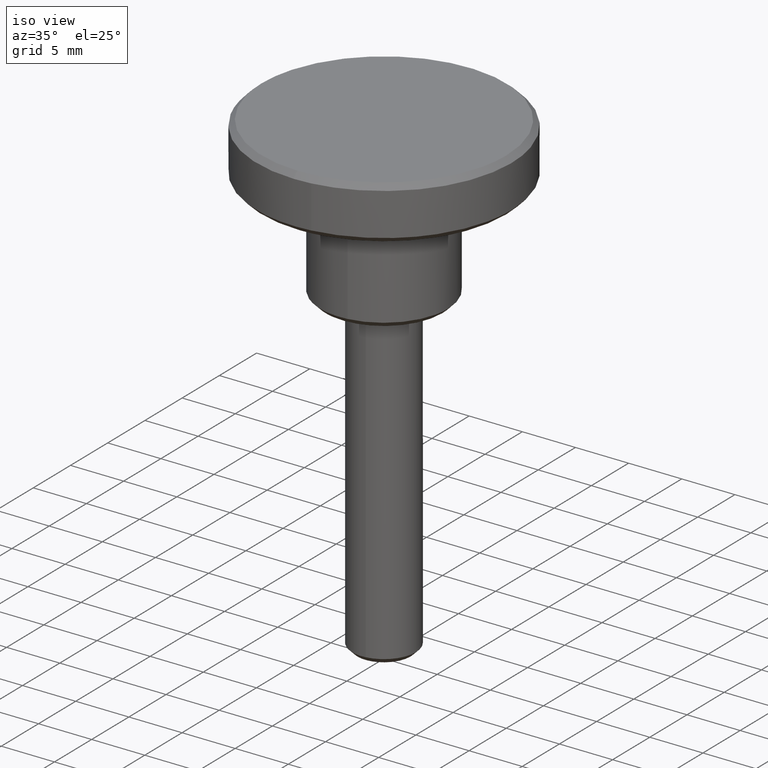
[diagram: clean part render]
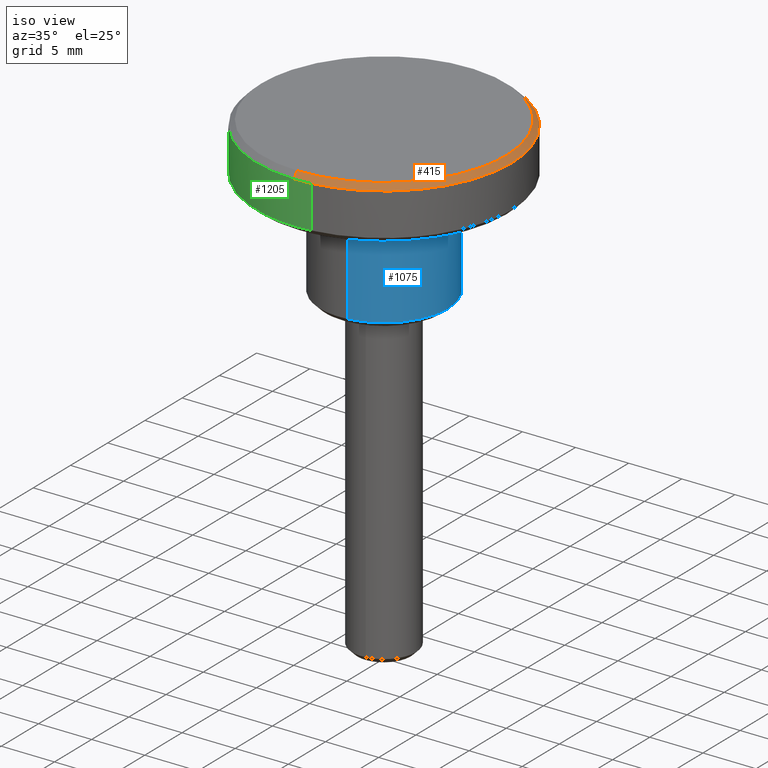
[diagram: same view with three faces highlighted in distinct colors, each labeled with its STEP entity id]
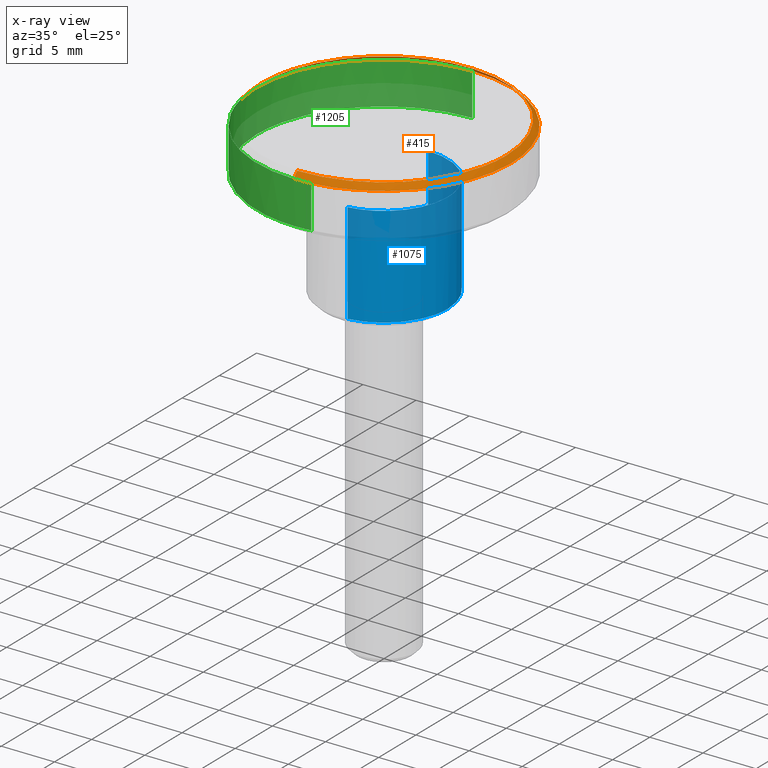
[diagram: x-ray of the same camera — body ghosted, the three highlighted faces saturated]
A machine part, iso view with three faces highlighted in distinct colors.
The next image is the same camera in x-ray (body ghosted, the three faces saturated) — at least one of them is partly hidden behind the body in this view.
Their STEP definitions:

[orange] entity #415 — the highlighted face is a freeform B-spline surface patch.
#245=CARTESIAN_POINT('',(-11.191331034639012,-2.591672418174083,15.012500000000003));
#246=CARTESIAN_POINT('',(-11.498961770299591,-1.263264794176366,15.012500000000003));
#247=CARTESIAN_POINT('',(-11.487062591199610,0.100246076537570,15.012499999999999));
#248=CARTESIAN_POINT('',(-11.386816514662039,11.587308667737178,15.012500000000008));
#249=CARTESIAN_POINT('',(0.100246076537570,11.487062591199610,15.012499999999999));
#250=CARTESIAN_POINT('',(11.587308667737178,11.386816514662039,15.012500000000008));
#251=CARTESIAN_POINT('',(11.487062591199610,-0.100246076537570,15.012499999999999));
#252=CARTESIAN_POINT('',(11.386816514662039,-11.587308667737178,15.012500000000008));
#253=CARTESIAN_POINT('',(-0.100246076537570,-11.487062591199610,15.012499999999999));
#254=CARTESIAN_POINT('',(-11.703100008230697,-2.710187144369708,14.487187499999997));
#255=CARTESIAN_POINT('',(-12.024798406204811,-1.321032697305058,14.487187500000001));
#256=CARTESIAN_POINT('',(-12.012355088909320,0.104830234716560,14.487187499999999));
#257=CARTESIAN_POINT('',(-11.907524854192760,12.117185323625877,14.487187500000005));
#258=CARTESIAN_POINT('',(0.104830234716560,12.012355088909320,14.487187499999999));
#259=CARTESIAN_POINT('',(12.117185323625877,11.907524854192760,14.487187500000005));
#260=CARTESIAN_POINT('',(12.012355088909320,-0.104830234716560,14.487187499999999));
#261=CARTESIAN_POINT('',(11.907524854192760,-12.117185323625877,14.487187500000005));
#262=CARTESIAN_POINT('',(-0.104830234716560,-12.012355088909320,14.487187499999999));
#270=(BOUNDED_SURFACE()B_SPLINE_SURFACE(2,1,((#245,#254),(#246,#255),(#247,#256),(#248,#257),(#249,#258),(#250,#259),(#251,#260),(#252,#261),(#253,#262)),.UNSPECIFIED.,.F.,.F.,.U.)B_SPLINE_SURFACE_WITH_KNOTS((3,2,2,2,3),(2,2),(0.0,3.184556710236832,23.088036149217022,42.991515588197210,62.894995027177401),(0.0,1.0),.UNSPECIFIED.)GEOMETRIC_REPRESENTATION_ITEM()RATIONAL_B_SPLINE_SURFACE(((0.921270302782944,0.921270302782944),(0.953137084989848,0.953137084989848),(1.0,1.0),(0.707106781186548,0.707106781186548),(1.0,1.0),(0.707106781186548,0.707106781186548),(1.0,1.0),(0.707106781186548,0.707106781186548),(1.0,1.0)))REPRESENTATION_ITEM('')SURFACE());
#271=CARTESIAN_POINT('',(-11.690617838142330,-2.707296541298529,14.499999999999231));
#272=VERTEX_POINT('',#271);
#273=CARTESIAN_POINT('',(-12.0,0.0,14.500000000000000));
#274=VERTEX_POINT('',#273);
#275=CARTESIAN_POINT('',(-11.690617838142327,-2.707296541298529,14.499999999999227));
#276=CARTESIAN_POINT('',(-12.000000000000004,-1.371325928163717,14.500000000000004));
#277=CARTESIAN_POINT('',(-12.0,0.0,14.500000000000000));
#285=(BOUNDED_CURVE()B_SPLINE_CURVE(2,(#275,#276,#277),.UNSPECIFIED.,.F.,.U.)B_SPLINE_CURVE_WITH_KNOTS((3,3),(0.961422971784425,1.0),.UNSPECIFIED.)CURVE()GEOMETRIC_REPRESENTATION_ITEM()RATIONAL_B_SPLINE_CURVE((0.923556557442486,0.954804200134731,1.0))REPRESENTATION_ITEM(''));
#286=EDGE_CURVE('',#272,#274,#285,.T.);
#287=ORIENTED_EDGE('',*,*,#286,.F.);
#288=CARTESIAN_POINT('',(-11.203508761551699,-2.594492518756421,14.999999999997851));
#289=VERTEX_POINT('',#288);
#290=CARTESIAN_POINT('',(-11.203508761551699,-2.594492518756421,14.999999999997851));
#291=CARTESIAN_POINT('',(-11.690617838142330,-2.707296541298529,14.499999999999231));
#292=QUASI_UNIFORM_CURVE('',1,(#290,#291),.UNSPECIFIED.,.F.,.U.);
#293=EDGE_CURVE('',#289,#272,#292,.T.);
#294=ORIENTED_EDGE('',*,*,#293,.F.);
#295=CARTESIAN_POINT('',(-11.500000000000000,0.0,15.0));
#296=VERTEX_POINT('',#295);
#297=CARTESIAN_POINT('',(-11.500000000000000,0.0,15.0));
#298=CARTESIAN_POINT('',(-11.500000000000002,-1.314187347835726,14.999999999999998));
#299=CARTESIAN_POINT('',(-11.203508761551705,-2.594492518756421,14.999999999997852));
#307=(BOUNDED_CURVE()B_SPLINE_CURVE(2,(#297,#298,#299),.UNSPECIFIED.,.F.,.U.)B_SPLINE_CURVE_WITH_KNOTS((3,3),(0.500000000000000,0.538577028215916),.UNSPECIFIED.)CURVE()GEOMETRIC_REPRESENTATION_ITEM()RATIONAL_B_SPLINE_CURVE((1.0,0.954804200134332,0.923556557441934))REPRESENTATION_ITEM(''));
#308=EDGE_CURVE('',#296,#289,#307,.T.);
#309=ORIENTED_EDGE('',*,*,#308,.F.);
#310=CARTESIAN_POINT('',(11.500000000000000,0.0,15.0));
#311=VERTEX_POINT('',#310);
#312=CARTESIAN_POINT('',(11.500000000000000,0.0,15.0));
#313=CARTESIAN_POINT('',(11.500000000000000,11.500000000000000,14.999999999999995));
#314=CARTESIAN_POINT('',(0.0,11.500000000000000,15.0));
#315=CARTESIAN_POINT('',(-11.500000000000000,11.500000000000000,14.999999999999995));
#316=CARTESIAN_POINT('',(-11.500000000000000,0.0,15.0));
#324=(BOUNDED_CURVE()B_SPLINE_CURVE(2,(#312,#313,#314,#315,#316),.UNSPECIFIED.,.F.,.U.)B_SPLINE_CURVE_WITH_KNOTS((3,2,3),(0.0,0.250000000000000,0.500000000000000),.UNSPECIFIED.)CURVE()GEOMETRIC_REPRESENTATION_ITEM()RATIONAL_B_SPLINE_CURVE((1.0,0.707106781186548,1.0,0.707106781186548,1.0))REPRESENTATION_ITEM(''));
#325=EDGE_CURVE('',#311,#296,#324,.T.);
#326=ORIENTED_EDGE('',*,*,#325,.F.);
#327=CARTESIAN_POINT('',(-0.100355158268865,-11.499562115242730,14.999999999994881));
#328=VERTEX_POINT('',#327);
#329=CARTESIAN_POINT('',(-0.100355158268865,-11.499562115242728,14.999999999994886));
#330=CARTESIAN_POINT('',(-0.050178534475591,-11.499999999999996,14.999999999999998));
#331=CARTESIAN_POINT('',(0.0,-11.500000000000000,15.0));
#332=CARTESIAN_POINT('',(11.500000000000000,-11.500000000000000,14.999999999999995));
#333=CARTESIAN_POINT('',(11.500000000000000,0.0,15.0));
#341=(BOUNDED_CURVE()B_SPLINE_CURVE(2,(#329,#330,#331,#332,#333),.UNSPECIFIED.,.F.,.U.)B_SPLINE_CURVE_WITH_KNOTS((3,2,3),(0.748460105663863,0.750000000000000,1.0),.UNSPECIFIED.)CURVE()GEOMETRIC_REPRESENTATION_ITEM()RATIONAL_B_SPLINE_CURVE((0.996414028097746,0.998195901565025,1.0,0.707106781186548,1.0))REPRESENTATION_ITEM(''));
#342=EDGE_CURVE('',#328,#311,#341,.T.);
#343=ORIENTED_EDGE('',*,*,#342,.F.);
#344=CARTESIAN_POINT('',(-0.104718426003151,-11.999543076772930,14.499999999996930));
#345=VERTEX_POINT('',#344);
#346=CARTESIAN_POINT('',(-0.100355158268865,-11.499562115242730,14.999999999994881));
#347=CARTESIAN_POINT('',(-0.104718426003151,-11.999543076772930,14.499999999996930));
#348=QUASI_UNIFORM_CURVE('',1,(#346,#347),.UNSPECIFIED.,.F.,.U.);
#349=EDGE_CURVE('',#328,#345,#348,.T.);
#350=ORIENTED_EDGE('',*,*,#349,.T.);
#351=CARTESIAN_POINT('',(1.489535021150606,-11.907194691478130,14.499999999999970));
#352=VERTEX_POINT('',#351);
#353=CARTESIAN_POINT('',(1.489535021150606,-11.907194691478125,14.499999999999973));
#354=CARTESIAN_POINT('',(0.747658622622870,-12.0,14.499999999999998));
#355=CARTESIAN_POINT('',(0.0,-12.0,14.500000000000000));
#356=CARTESIAN_POINT('',(-0.052360209871069,-12.000000000000004,14.500000000000000));
#357=CARTESIAN_POINT('',(-0.104718426003151,-11.999543076772932,14.499999999996927));
#365=(BOUNDED_CURVE()B_SPLINE_CURVE(2,(#353,#354,#355,#356,#357),.UNSPECIFIED.,.F.,.U.)B_SPLINE_CURVE_WITH_KNOTS((3,2,3),(0.728526085246587,0.750000000000000,0.751539894335652),.UNSPECIFIED.)CURVE()GEOMETRIC_REPRESENTATION_ITEM()RATIONAL_B_SPLINE_CURVE((0.954005457864981,0.974841743949389,1.0,0.998195901565593,0.996414028098867))REPRESENTATION_ITEM(''));
#366=EDGE_CURVE('',#352,#345,#365,.T.);
#367=ORIENTED_EDGE('',*,*,#366,.F.);
#368=CARTESIAN_POINT('',(12.0,0.0,14.500000000000000));
#369=VERTEX_POINT('',#368);
#370=CARTESIAN_POINT('',(12.0,0.0,14.500000000000000));
#371=CARTESIAN_POINT('',(12.000000000000002,-10.592384101727941,14.500000000000004));
#372=CARTESIAN_POINT('',(1.489535021150606,-11.907194691478125,14.499999999999973));
#380=(BOUNDED_CURVE()B_SPLINE_CURVE(2,(#370,#371,#372),.UNSPECIFIED.,.F.,.U.)B_SPLINE_CURVE_WITH_KNOTS((3,3),(0.500000000000000,0.728526085246587),.UNSPECIFIED.)CURVE()GEOMETRIC_REPRESENTATION_ITEM()RATIONAL_B_SPLINE_CURVE((1.0,0.732265037237158,0.954005457864981))REPRESENTATION_ITEM(''));
#381=EDGE_CURVE('',#369,#352,#380,.T.);
#382=ORIENTED_EDGE('',*,*,#381,.F.);
#383=CARTESIAN_POINT('',(-0.104706666921923,11.999543179378280,14.499999999999890));
#384=VERTEX_POINT('',#383);
#385=CARTESIAN_POINT('',(-0.104706666921923,11.999543179378277,14.499999999999895));
#386=CARTESIAN_POINT('',(-0.052354329983374,11.999999999999996,14.500000000000002));
#387=CARTESIAN_POINT('',(0.0,12.0,14.500000000000000));
#388=CARTESIAN_POINT('',(12.0,12.0,14.500000000000000));
#389=CARTESIAN_POINT('',(12.0,0.0,14.500000000000000));
#397=(BOUNDED_CURVE()B_SPLINE_CURVE(2,(#385,#386,#387,#388,#389),.UNSPECIFIED.,.F.,.U.)B_SPLINE_CURVE_WITH_KNOTS((3,2,3),(0.248460278277723,0.250000000000000,0.500000000000000),.UNSPECIFIED.)CURVE()GEOMETRIC_REPRESENTATION_ITEM()RATIONAL_B_SPLINE_CURVE((0.996414427574858,0.998196103794741,1.0,0.707106781186548,1.0))REPRESENTATION_ITEM(''));
#398=EDGE_CURVE('',#384,#369,#397,.T.);
#399=ORIENTED_EDGE('',*,*,#398,.F.);
#400=CARTESIAN_POINT('',(-12.0,0.0,14.500000000000000));
#401=CARTESIAN_POINT('',(-12.000000000000002,11.895746184919648,14.499999999999998));
#402=CARTESIAN_POINT('',(-0.104706666921923,11.999543179378277,14.499999999999895));
#410=(BOUNDED_CURVE()B_SPLINE_CURVE(2,(#400,#401,#402),.UNSPECIFIED.,.F.,.U.)B_SPLINE_CURVE_WITH_KNOTS((3,3),(0.0,0.248460278277723),.UNSPECIFIED.)CURVE()GEOMETRIC_REPRESENTATION_ITEM()RATIONAL_B_SPLINE_CURVE((1.0,0.708910677391806,0.996414427574858))REPRESENTATION_ITEM(''));
#411=EDGE_CURVE('',#274,#384,#410,.T.);
#412=ORIENTED_EDGE('',*,*,#411,.F.);
#413=EDGE_LOOP('',(#287,#294,#309,#326,#343,#350,#367,#382,#399,#412));
#414=FACE_OUTER_BOUND('',#413,.T.);
#415=ADVANCED_FACE('',(#414),#270,.T.);

[blue] entity #1075 — the highlighted face is a freeform B-spline surface patch.
#701=CARTESIAN_POINT('',(0.744768012509820,-5.953597282949374,0.499999999999945));
#702=VERTEX_POINT('',#701);
#759=CARTESIAN_POINT('',(-0.052356379839842,5.999771563105536,0.499999999998589));
#760=VERTEX_POINT('',#759);
#766=CARTESIAN_POINT('',(6.0,0.0,0.499999999999945));
#767=VERTEX_POINT('',#766);
#768=CARTESIAN_POINT('',(6.0,0.0,0.499999999999945));
#769=CARTESIAN_POINT('',(6.0,6.0,0.499999999999945));
#770=CARTESIAN_POINT('',(0.0,6.0,0.499999999999945));
#771=CARTESIAN_POINT('',(-0.026178688268117,5.999999999999999,0.499999999999945));
#772=CARTESIAN_POINT('',(-0.052356379839842,5.999771563105536,0.499999999998589));
#780=(BOUNDED_CURVE()B_SPLINE_CURVE(2,(#768,#769,#770,#771,#772),.UNSPECIFIED.,.F.,.U.)B_SPLINE_CURVE_WITH_KNOTS((3,2,3),(0.500000000000000,0.750000000000000,0.751539811158649),.UNSPECIFIED.)CURVE()GEOMETRIC_REPRESENTATION_ITEM()RATIONAL_B_SPLINE_CURVE((1.0,0.707106781186548,1.0,0.998195999013514,0.996414220593821))REPRESENTATION_ITEM(''));
#781=EDGE_CURVE('',#767,#760,#780,.T.);
#783=CARTESIAN_POINT('',(0.744768012509820,-5.953597282949374,0.499999999999945));
#784=CARTESIAN_POINT('',(6.000000000000001,-5.296191600846071,0.499999999999945));
#785=CARTESIAN_POINT('',(6.0,0.0,0.499999999999945));
#793=(BOUNDED_CURVE()B_SPLINE_CURVE(2,(#783,#784,#785),.UNSPECIFIED.,.F.,.U.)B_SPLINE_CURVE_WITH_KNOTS((3,3),(0.271473928972449,0.500000000000000),.UNSPECIFIED.)CURVE()GEOMETRIC_REPRESENTATION_ITEM()RATIONAL_B_SPLINE_CURVE((0.954005430271328,0.732265053895795,1.0))REPRESENTATION_ITEM(''));
#794=EDGE_CURVE('',#702,#767,#793,.T.);
#1005=CARTESIAN_POINT('',(0.660702262664978,-5.964113526903052,0.262499999999943));
#1006=CARTESIAN_POINT('',(0.702631630389965,-5.958868353207065,0.262499999999943));
#1007=CARTESIAN_POINT('',(6.046396983014668,-5.290387548799326,0.262499999999943));
#1008=CARTESIAN_POINT('',(5.999771538385026,0.052359212990243,0.262499999999943));
#1009=CARTESIAN_POINT('',(5.947412325394783,6.052130751375269,0.262499999999943));
#1010=CARTESIAN_POINT('',(-0.092971424276106,5.999417120986445,0.262499999999943));
#1011=CARTESIAN_POINT('',(-0.133356535683414,5.999064685458480,0.262499999999943));
#1012=CARTESIAN_POINT('',(0.660702262664978,-5.964113526903052,10.243437500000006));
#1013=CARTESIAN_POINT('',(0.702631630389965,-5.958868353207065,10.243437500000004));
#1014=CARTESIAN_POINT('',(6.046396983014668,-5.290387548799326,10.243437500000004));
#1015=CARTESIAN_POINT('',(5.999771538385026,0.052359212990243,10.243437500000001));
#1016=CARTESIAN_POINT('',(5.947412325394783,6.052130751375269,10.243437500000004));
#1017=CARTESIAN_POINT('',(-0.092971424276106,5.999417120986445,10.243437500000002));
#1018=CARTESIAN_POINT('',(-0.133356535683414,5.999064685458480,10.243437500000008));
#1026=(BOUNDED_SURFACE()B_SPLINE_SURFACE(2,1,((#1005,#1012),(#1006,#1013),(#1007,#1014),(#1008,#1015),(#1009,#1016),(#1010,#1017),(#1011,#1018)),.UNSPECIFIED.,.F.,.F.,.U.)B_SPLINE_SURFACE_WITH_KNOTS((3,1,2,1,3),(2,2),(0.0,0.095446361914486,9.241281819112421,19.182407316066701,19.277838840330649),(0.0,9.980937500000062),.UNSPECIFIED.)GEOMETRIC_REPRESENTATION_ITEM()RATIONAL_B_SPLINE_SURFACE(((0.961610472073112,0.961610472073112),(0.959248295131886,0.959248295131886),(0.730538238691624,0.730538238691624),(1.0,1.0),(0.707106781186548,0.707106781186548),(1.002811678247750,1.002811678247750),(1.005623356495500,1.005623356495500)))REPRESENTATION_ITEM('')SURFACE());
#1027=ORIENTED_EDGE('',*,*,#794,.T.);
#1028=ORIENTED_EDGE('',*,*,#781,.T.);
#1029=CARTESIAN_POINT('',(-0.052354715999925,5.999771577626296,10.0));
#1030=VERTEX_POINT('',#1029);
#1031=CARTESIAN_POINT('',(-0.052356379839842,5.999771563105536,0.499999999998589));
#1032=CARTESIAN_POINT('',(-0.052354715999925,5.999771577626296,10.0));
#1033=QUASI_UNIFORM_CURVE('',1,(#1031,#1032),.UNSPECIFIED.,.F.,.U.);
#1034=EDGE_CURVE('',#760,#1030,#1033,.T.);
#1035=ORIENTED_EDGE('',*,*,#1034,.T.);
#1036=CARTESIAN_POINT('',(6.0,0.0,10.0));
#1037=VERTEX_POINT('',#1036);
#1038=CARTESIAN_POINT('',(-0.052354715999925,5.999771577626296,10.0));
#1039=CARTESIAN_POINT('',(-0.026177856300639,6.0,10.000000000000002));
#1040=CARTESIAN_POINT('',(0.0,6.0,10.0));
#1041=CARTESIAN_POINT('',(6.0,6.0,10.000000000000002));
#1042=CARTESIAN_POINT('',(6.0,0.0,10.0));
#1050=(BOUNDED_CURVE()B_SPLINE_CURVE(2,(#1038,#1039,#1040,#1041,#1042),.UNSPECIFIED.,.F.,.U.)B_SPLINE_CURVE_WITH_KNOTS((3,2,3),(0.248460237688788,0.250000000000000,0.500000000000000),.UNSPECIFIED.)CURVE()GEOMETRIC_REPRESENTATION_ITEM()RATIONAL_B_SPLINE_CURVE((0.996414333640575,0.998196056241846,1.0,0.707106781186548,1.0))REPRESENTATION_ITEM(''));
#1051=EDGE_CURVE('',#1030,#1037,#1050,.T.);
#1052=ORIENTED_EDGE('',*,*,#1051,.T.);
#1053=CARTESIAN_POINT('',(0.744757817497548,-5.953598558281430,10.0));
#1054=VERTEX_POINT('',#1053);
#1055=CARTESIAN_POINT('',(6.0,0.0,10.0));
#1056=CARTESIAN_POINT('',(6.000000000000002,-5.296200740827882,10.0));
#1057=CARTESIAN_POINT('',(0.744757817497548,-5.953598558281430,10.0));
#1065=(BOUNDED_CURVE()B_SPLINE_CURVE(2,(#1055,#1056,#1057),.UNSPECIFIED.,.F.,.U.)B_SPLINE_CURVE_WITH_KNOTS((3,3),(0.500000000000000,0.728526359819781),.UNSPECIFIED.)CURVE()GEOMETRIC_REPRESENTATION_ITEM()RATIONAL_B_SPLINE_CURVE((1.0,0.732264715554652,0.954005990706177))REPRESENTATION_ITEM(''));
#1066=EDGE_CURVE('',#1037,#1054,#1065,.T.);
#1067=ORIENTED_EDGE('',*,*,#1066,.T.);
#1068=CARTESIAN_POINT('',(0.744768012509820,-5.953597282949374,0.499999999999945));
#1069=CARTESIAN_POINT('',(0.744757817497548,-5.953598558281430,10.0));
#1070=QUASI_UNIFORM_CURVE('',1,(#1068,#1069),.UNSPECIFIED.,.F.,.U.);
#1071=EDGE_CURVE('',#702,#1054,#1070,.T.);
#1072=ORIENTED_EDGE('',*,*,#1071,.F.);
#1073=EDGE_LOOP('',(#1027,#1028,#1035,#1052,#1067,#1072));
#1074=FACE_OUTER_BOUND('',#1073,.T.);
#1075=ADVANCED_FACE('',(#1074),#1026,.T.);

[green] entity #1205 — the highlighted face is a freeform B-spline surface patch.
#271=CARTESIAN_POINT('',(-11.690617838142330,-2.707296541298529,14.499999999999231));
#272=VERTEX_POINT('',#271);
#273=CARTESIAN_POINT('',(-12.0,0.0,14.500000000000000));
#274=VERTEX_POINT('',#273);
#275=CARTESIAN_POINT('',(-11.690617838142327,-2.707296541298529,14.499999999999227));
#276=CARTESIAN_POINT('',(-12.000000000000004,-1.371325928163717,14.500000000000004));
#277=CARTESIAN_POINT('',(-12.0,0.0,14.500000000000000));
#285=(BOUNDED_CURVE()B_SPLINE_CURVE(2,(#275,#276,#277),.UNSPECIFIED.,.F.,.U.)B_SPLINE_CURVE_WITH_KNOTS((3,3),(0.961422971784425,1.0),.UNSPECIFIED.)CURVE()GEOMETRIC_REPRESENTATION_ITEM()RATIONAL_B_SPLINE_CURVE((0.923556557442486,0.954804200134731,1.0))REPRESENTATION_ITEM(''));
#286=EDGE_CURVE('',#272,#274,#285,.T.);
#344=CARTESIAN_POINT('',(-0.104718426003151,-11.999543076772930,14.499999999996930));
#345=VERTEX_POINT('',#344);
#351=CARTESIAN_POINT('',(1.489535021150606,-11.907194691478130,14.499999999999970));
#352=VERTEX_POINT('',#351);
#353=CARTESIAN_POINT('',(1.489535021150606,-11.907194691478125,14.499999999999973));
#354=CARTESIAN_POINT('',(0.747658622622870,-12.0,14.499999999999998));
#355=CARTESIAN_POINT('',(0.0,-12.0,14.500000000000000));
#356=CARTESIAN_POINT('',(-0.052360209871069,-12.000000000000004,14.500000000000000));
#357=CARTESIAN_POINT('',(-0.104718426003151,-11.999543076772932,14.499999999996927));
#365=(BOUNDED_CURVE()B_SPLINE_CURVE(2,(#353,#354,#355,#356,#357),.UNSPECIFIED.,.F.,.U.)B_SPLINE_CURVE_WITH_KNOTS((3,2,3),(0.728526085246587,0.750000000000000,0.751539894335652),.UNSPECIFIED.)CURVE()GEOMETRIC_REPRESENTATION_ITEM()RATIONAL_B_SPLINE_CURVE((0.954005457864981,0.974841743949389,1.0,0.998195901565593,0.996414028098867))REPRESENTATION_ITEM(''));
#366=EDGE_CURVE('',#352,#345,#365,.T.);
#383=CARTESIAN_POINT('',(-0.104706666921923,11.999543179378280,14.499999999999890));
#384=VERTEX_POINT('',#383);
#400=CARTESIAN_POINT('',(-12.0,0.0,14.500000000000000));
#401=CARTESIAN_POINT('',(-12.000000000000002,11.895746184919648,14.499999999999998));
#402=CARTESIAN_POINT('',(-0.104706666921923,11.999543179378277,14.499999999999895));
#410=(BOUNDED_CURVE()B_SPLINE_CURVE(2,(#400,#401,#402),.UNSPECIFIED.,.F.,.U.)B_SPLINE_CURVE_WITH_KNOTS((3,3),(0.0,0.248460278277723),.UNSPECIFIED.)CURVE()GEOMETRIC_REPRESENTATION_ITEM()RATIONAL_B_SPLINE_CURVE((1.0,0.708910677391806,0.996414427574858))REPRESENTATION_ITEM(''));
#411=EDGE_CURVE('',#274,#384,#410,.T.);
#430=CARTESIAN_POINT('',(-0.104718426003151,-11.999543076772934,14.499999999996927));
#431=CARTESIAN_POINT('',(-9.557837021806503,-11.917046960538249,14.499999999999998));
#432=CARTESIAN_POINT('',(-11.690617838142328,-2.707296541298530,14.499999999999229));
#440=(BOUNDED_CURVE()B_SPLINE_CURVE(2,(#430,#431,#432),.UNSPECIFIED.,.F.,.U.)B_SPLINE_CURVE_WITH_KNOTS((3,3),(0.751539894335652,0.961422971784425),.UNSPECIFIED.)CURVE()GEOMETRIC_REPRESENTATION_ITEM()RATIONAL_B_SPLINE_CURVE((0.996414028098868,0.753549905436560,0.923556557442487))REPRESENTATION_ITEM(''));
#441=EDGE_CURVE('',#345,#272,#440,.T.);
#538=CARTESIAN_POINT('',(0.104718425981447,-11.999543076770159,10.500000000000149));
#539=VERTEX_POINT('',#538);
#545=CARTESIAN_POINT('',(-12.0,0.0,10.500000000000000));
#546=VERTEX_POINT('',#545);
#547=CARTESIAN_POINT('',(-12.0,0.0,10.500000000000000));
#548=CARTESIAN_POINT('',(-12.0,-12.0,10.500000000000002));
#549=CARTESIAN_POINT('',(0.0,-12.0,10.500000000000000));
#550=CARTESIAN_POINT('',(0.052360209849382,-12.000000000000002,10.500000000000002));
#551=CARTESIAN_POINT('',(0.104718425981447,-11.999543076770161,10.500000000000146));
#559=(BOUNDED_CURVE()B_SPLINE_CURVE(2,(#547,#548,#549,#550,#551),.UNSPECIFIED.,.F.,.U.)B_SPLINE_CURVE_WITH_KNOTS((3,2,3),(0.0,0.250000000000000,0.251539894335015),.UNSPECIFIED.)CURVE()GEOMETRIC_REPRESENTATION_ITEM()RATIONAL_B_SPLINE_CURVE((1.0,0.707106781186548,1.0,0.998195901566339,0.996414028100340))REPRESENTATION_ITEM(''));
#560=EDGE_CURVE('',#546,#539,#559,.T.);
#562=CARTESIAN_POINT('',(-0.104707031182674,11.999543176200129,10.500000000000000));
#563=VERTEX_POINT('',#562);
#564=CARTESIAN_POINT('',(-0.104707031182674,11.999543176200127,10.500000000000002));
#565=CARTESIAN_POINT('',(-12.000000000000002,11.895745823796045,10.500000000000000));
#566=CARTESIAN_POINT('',(-12.0,0.0,10.500000000000000));
#574=(BOUNDED_CURVE()B_SPLINE_CURVE(2,(#564,#565,#566),.UNSPECIFIED.,.F.,.U.)B_SPLINE_CURVE_WITH_KNOTS((3,3),(0.751539727069308,1.0),.UNSPECIFIED.)CURVE()GEOMETRIC_REPRESENTATION_ITEM()RATIONAL_B_SPLINE_CURVE((0.996414415200314,0.708910683656242,1.0))REPRESENTATION_ITEM(''));
#575=EDGE_CURVE('',#563,#546,#574,.T.);
#645=CARTESIAN_POINT('',(1.489523305221158,-11.907196157074040,10.500000000000000));
#646=VERTEX_POINT('',#645);
#660=CARTESIAN_POINT('',(0.104718425981447,-11.999543076770159,10.500000000000144));
#661=CARTESIAN_POINT('',(0.799795476801113,-11.993477231243038,10.499999999999996));
#662=CARTESIAN_POINT('',(1.489523305221158,-11.907196157074040,10.500000000000000));
#670=(BOUNDED_CURVE()B_SPLINE_CURVE(2,(#660,#661,#662),.UNSPECIFIED.,.F.,.U.)B_SPLINE_CURVE_WITH_KNOTS((3,3),(0.251539894335015,0.271473748816434),.UNSPECIFIED.)CURVE()GEOMETRIC_REPRESENTATION_ITEM()RATIONAL_B_SPLINE_CURVE((0.996414028100341,0.973347765975828,0.954005779884806))REPRESENTATION_ITEM(''));
#671=EDGE_CURVE('',#539,#646,#670,.T.);
#1155=CARTESIAN_POINT('',(1.489523305221158,-11.907196157074040,10.500000000000000));
#1156=CARTESIAN_POINT('',(1.489535021150606,-11.907194691478130,14.499999999999970));
#1157=QUASI_UNIFORM_CURVE('',1,(#1155,#1156),.UNSPECIFIED.,.F.,.U.);
#1158=EDGE_CURVE('',#646,#352,#1157,.T.);
#1163=CARTESIAN_POINT('',(-0.104707031182674,11.999543176200129,10.500000000000000));
#1164=CARTESIAN_POINT('',(-0.104706666921923,11.999543179378280,14.499999999999890));
#1165=QUASI_UNIFORM_CURVE('',1,(#1163,#1164),.UNSPECIFIED.,.F.,.U.);
#1166=EDGE_CURVE('',#563,#384,#1165,.T.);
#1172=CARTESIAN_POINT('',(-0.104718425980487,11.999543076770051,10.400000000000000));
#1173=CARTESIAN_POINT('',(-12.104261502750537,11.894824650789566,10.399999999999999));
#1174=CARTESIAN_POINT('',(-11.999543076770051,-0.104718425980487,10.400000000000000));
#1175=CARTESIAN_POINT('',(-11.894824650789566,-12.104261502750537,10.399999999999999));
#1176=CARTESIAN_POINT('',(0.104718425980487,-11.999543076770051,10.400000000000000));
#1177=CARTESIAN_POINT('',(0.799801907498083,-11.993477175123314,10.400000000000002));
#1178=CARTESIAN_POINT('',(1.489536024957952,-11.907194565906458,10.399999999999999));
#1179=CARTESIAN_POINT('',(-0.104718425980487,11.999543076770051,14.602499999999999));
#1180=CARTESIAN_POINT('',(-12.104261502750537,11.894824650789566,14.602499999999997));
#1181=CARTESIAN_POINT('',(-11.999543076770051,-0.104718425980487,14.602499999999999));
#1182=CARTESIAN_POINT('',(-11.894824650789566,-12.104261502750537,14.602499999999997));
#1183=CARTESIAN_POINT('',(0.104718425980487,-11.999543076770051,14.602499999999999));
#1184=CARTESIAN_POINT('',(0.799801907498083,-11.993477175123314,14.602500000000004));
#1185=CARTESIAN_POINT('',(1.489536024957952,-11.907194565906458,14.602500000000010));
#1193=(BOUNDED_SURFACE()B_SPLINE_SURFACE(2,1,((#1172,#1179),(#1173,#1180),(#1174,#1181),(#1175,#1182),(#1176,#1183),(#1177,#1184),(#1178,#1185)),.UNSPECIFIED.,.F.,.F.,.U.)B_SPLINE_SURFACE_WITH_KNOTS((3,2,2,3),(2,2),(0.0,19.882250993908560,39.764501987817113,41.355082067329803),(0.0,4.202500000000007),.UNSPECIFIED.)GEOMETRIC_REPRESENTATION_ITEM()RATIONAL_B_SPLINE_SURFACE(((1.0,1.0),(0.707106781186548,0.707106781186548),(1.0,1.0),(0.707106781186548,0.707106781186548),(1.0,1.0),(0.976568542494924,0.976568542494924),(0.956886118190660,0.956886118190660)))REPRESENTATION_ITEM('')SURFACE());
#1194=ORIENTED_EDGE('',*,*,#366,.T.);
#1195=ORIENTED_EDGE('',*,*,#441,.T.);
#1196=ORIENTED_EDGE('',*,*,#286,.T.);
#1197=ORIENTED_EDGE('',*,*,#411,.T.);
#1198=ORIENTED_EDGE('',*,*,#1166,.F.);
#1199=ORIENTED_EDGE('',*,*,#575,.T.);
#1200=ORIENTED_EDGE('',*,*,#560,.T.);
#1201=ORIENTED_EDGE('',*,*,#671,.T.);
#1202=ORIENTED_EDGE('',*,*,#1158,.T.);
#1203=EDGE_LOOP('',(#1194,#1195,#1196,#1197,#1198,#1199,#1200,#1201,#1202));
#1204=FACE_OUTER_BOUND('',#1203,.T.);
#1205=ADVANCED_FACE('',(#1204),#1193,.T.);